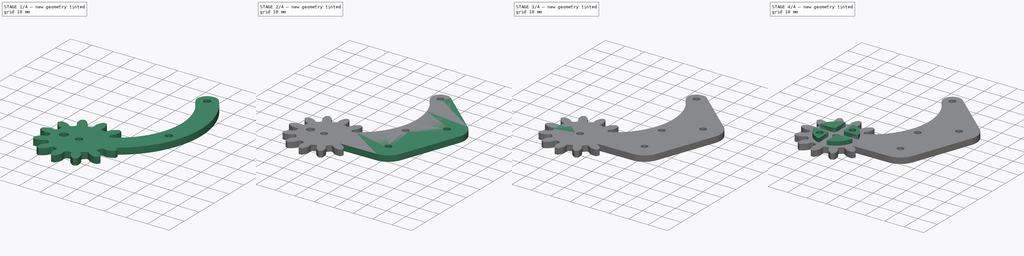
[diagram: build sequence overview — one tinted view per stage of 4, left to right]
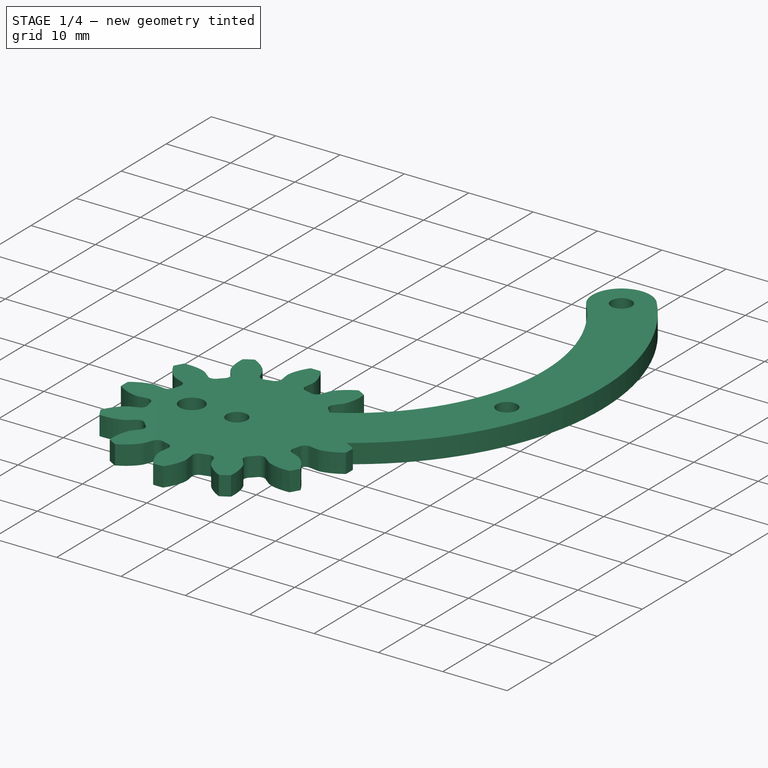
[diagram: stage 1 of 4 — iso view after this stage's code; geometry added in this stage tinted green]
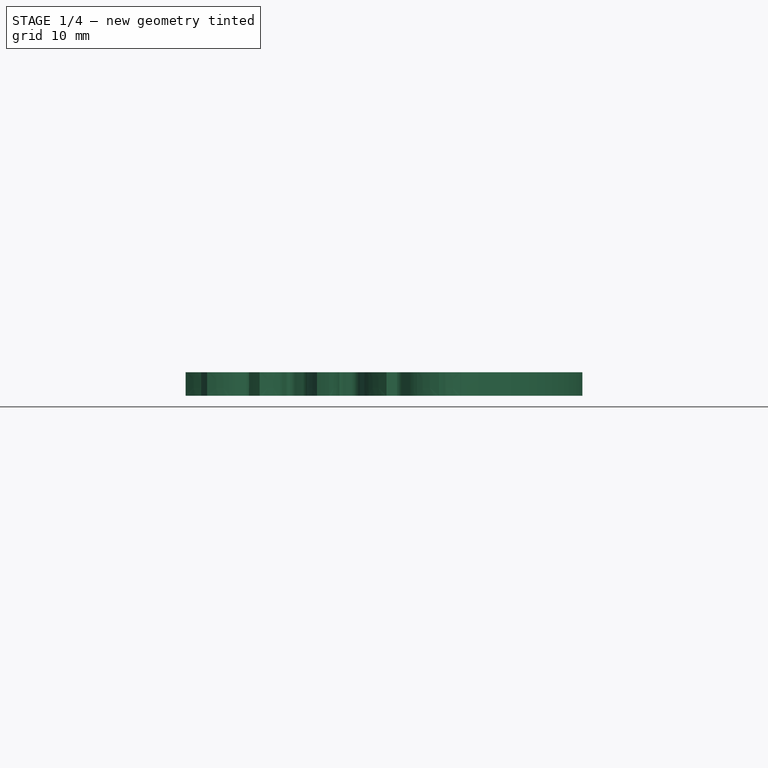
[diagram: stage 1 of 4 — front view after this stage's code; geometry added in this stage tinted green]
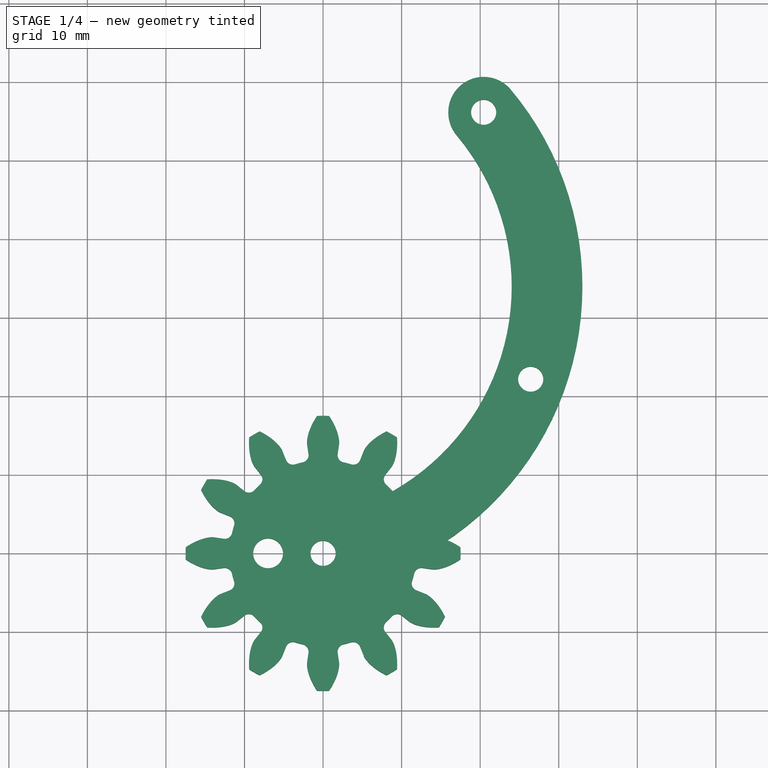
[diagram: stage 1 of 4 — top view after this stage's code; geometry added in this stage tinted green]
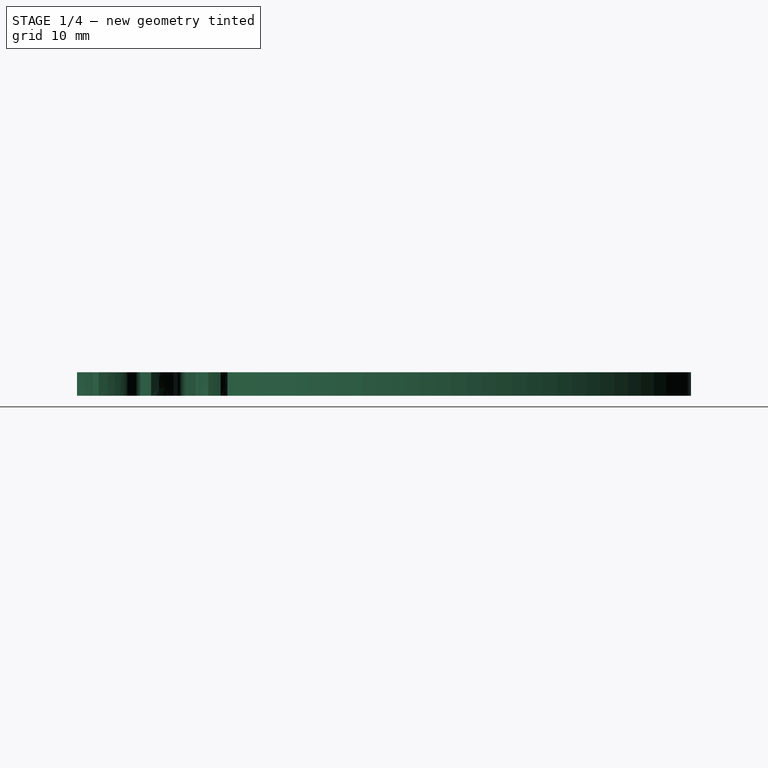
[diagram: stage 1 of 4 — right view after this stage's code; geometry added in this stage tinted green]
FCSTD DOCUMENT  (FreeCAD 0.18.1R)
Label: arm
License: All rights reserved
LicenseURL: http://en.wikipedia.org/wiki/All_rights_reserved
objects: Sketcher::SketchObject×9, PartDesign::Body×6, PartDesign::Pocket×6, PartDesign::Pad×5, TechDraw::DrawViewPart×5, PartDesign::FeatureBase×3, Part::Part2DObjectPython×2, TechDraw::DrawSVGTemplate×1, TechDraw::DrawPage×1
note: 42 computed .brp shape members not serialized (recipe doc carries the construction recipe); baked Part::Feature solids carry a one-line shape summary decoded from their .brp

FEATURE [Sketcher::SketchObject] Sketch
  MapMode = 5
  Support = -> [XY_Plane]
  sketch-geometry (11):
    g0: ArcOfCircle CenterX=-5.99086 CenterY=33.9759 CenterZ=0 NormalX=0 NormalY=0 NormalZ=1 AngleXU=0 Radius=30 StartAngle=4.88692 EndAngle=6.98132
    g1: ArcOfCircle CenterX=-5.99086 CenterY=33.9759 CenterZ=0 NormalX=0 NormalY=0 NormalZ=1 AngleXU=0 Radius=39 StartAngle=4.88692 EndAngle=6.98132
    g2: LineSegment [constr] StartX=-5.99086 StartY=33.9759 StartZ=0 EndX=23.8849 EndY=59.0446 EndZ=0
    g3: LineSegment [constr] StartX=0.781417 StartY=-4.43163 StartZ=0 EndX=-5.99086 EndY=33.9759 EndZ=0
    g4: ArcOfCircle CenterX=20.4377 CenterY=56.152 CenterZ=0 NormalX=0 NormalY=0 NormalZ=1 AngleXU=0 Radius=4.5 StartAngle=0.698132 EndAngle=3.83972
    g5: ArcOfCircle CenterX=0 CenterY=0 CenterZ=0 NormalX=0 NormalY=0 NormalZ=1 AngleXU=0 Radius=4.5 StartAngle=1.74533 EndAngle=4.88692
    g6: Circle CenterX=0 CenterY=0 CenterZ=0 NormalX=0 NormalY=0 NormalZ=1 AngleXU=0 Radius=1.6
    g7: Circle CenterX=26.4285 CenterY=22.1762 CenterZ=0 NormalX=0 NormalY=0 NormalZ=1 AngleXU=0 Radius=1.6
    g8: Circle CenterX=20.4377 CenterY=56.152 CenterZ=0 NormalX=0 NormalY=0 NormalZ=1 AngleXU=0 Radius=1.6
    g9: LineSegment [constr] StartX=-5.99086 StartY=33.9759 StartZ=0 EndX=30.6572 EndY=20.6371 EndZ=0
    g10: GeomPoint X=22.1999 Y=23.7153 Z=0
  constraints (29):
    c: Radius(g0) = 30
    c: Coincident(g1,g0)
    c: Coincident(g2,g0)
    c: Coincident(g2,g1)
    c: Coincident(g3,g1)
    c: Coincident(g3,g0)
    c: Angle(g3,g2) = 2.0944
    c: PointOnObject(g0,g3)
    c: Radius(g1) = 39
    c: Symmetric(g1,g0,g-1)
    c: Angle(g-2,g3) = 0.174533
    c: PointOnObject(g4,g2)
    c: Coincident(g4,g0)
    c: Coincident(g4,g1)
    c: Coincident(g5,g-1)
    c: Coincident(g5,g1)
    c: Coincident(g5,g0)
    c: PointOnObject(g0,g2)
    c: Coincident(g8,g4)
    c: Equal(g8,g7)
    c: Equal(g7,g6)
    c: Coincident(g9,g0)
    c: PointOnObject(g9,g1)
    c: PointOnObject(g7,g9)
    c: PointOnObject(g10,g0)
    c: Symmetric(g10,g9,g7)
    c: Angle(g3,g9) = 1.0472
    c: Diameter(g8) = 3.2
    c: Coincident(g6,g5)
FEATURE [PartDesign::Pad] Pad
  Length = 3
  Length2 = 100
  Profile = -> Sketch
  Refine = true
  Type = 0
FEATURE [PartDesign::Body] Body  label="Arm"
  Group = -> [Sketch,Pad]
  Origin = -> Origin
  Tip = -> Pad
FEATURE [Part::Part2DObjectPython] InvoluteGear  # Draft 2D object (typed FeaturePython)
  ExternalGear = true
  HighPrecision = true
  Modules = 2.5
  NumberOfTeeth = 12
  PressureAngle = 20
FEATURE [PartDesign::Pad] Pad001
  Length = 3
  Length2 = 100
  Profile = -> InvoluteGear
  Refine = true
  Type = 0
FEATURE [PartDesign::Body] Body003  label="Mount"
  BaseFeature = -> Pad
  Group = -> [Clone001,Sketch003,Pad003]
  Origin = -> Origin003
  Placement = pos=(41,0,0) rot=(0,0,1;0rad)
  Tip = -> Pad003
FEATURE [PartDesign::FeatureBase] Clone002
  BaseFeature = -> Pad001
FEATURE [PartDesign::Body] Body008  label="servo adapter"
  Group = -> [Sketch042,Pad013,Sketch043,Pocket026,Sketch044,Pocket027,Sketch045,Pocket028]
  Origin = -> Origin008
  Placement = pos=(-93,40,8) rot=(0,0,1;2.35619rad)
  Tip = -> Pocket028
FEATURE [PartDesign::Pocket] Pocket029
  BaseFeature = -> Clone002
  Length = 5
  Length2 = 100
  Profile = -> Sketch004
  Refine = true
  Type = 1
FEATURE [PartDesign::Body] Body004  label="Servo Gear"
  BaseFeature = -> Pad001
  Group = -> [Clone002,Sketch004,Pocket029]
  Origin = -> Origin004
  Placement = pos=(-93,40,0) rot=(0,0,1;0rad)
  Tip = -> Pocket029
FEATURE [TechDraw::DrawSVGTemplate] Template
  Height = 210
  Orientation = 1
  Width = 297
FEATURE [TechDraw::DrawViewPart] View
  CoarseView = false
  Direction = (0,0,1)
  Focus = 100
  HardHidden = false
  IsoCount = 0
  IsoHidden = false
  IsoVisible = false
  LockPosition = false
  Perspective = false
  Rotation = 0
  ScaleType = 0
  SeamHidden = false
  SeamVisible = false
  SmoothHidden = false
  SmoothVisible = false
  Source = -> [Body]
  X = 52.0366
  Y = 151.098
FEATURE [TechDraw::DrawViewPart] View001
  CoarseView = false
  Direction = (0,0,1)
  Focus = 100
  HardHidden = false
  IsoCount = 0
  IsoHidden = false
  IsoVisible = false
  LockPosition = false
  Perspective = false
  Rotation = 0
  ScaleType = 0
  SeamHidden = false
  SeamVisible = false
  SmoothHidden = false
  SmoothVisible = false
  Source = -> [Body001]
  X = 100.268
  Y = 167.744
FEATURE [TechDraw::DrawViewPart] View002
  CoarseView = false
  Direction = (0,0,1)
  Focus = 100
  HardHidden = false
  IsoCount = 0
  IsoHidden = false
  IsoVisible = false
  LockPosition = false
  Perspective = false
  Rotation = 0
  ScaleType = 0
  SeamHidden = false
  SeamVisible = false
  SmoothHidden = false
  SmoothVisible = false
  Source = -> [Body002]
  X = 154.902
  Y = 145.122
FEATURE [TechDraw::DrawViewPart] View003
  CoarseView = false
  Direction = (0,0,1)
  Focus = 100
  HardHidden = false
  IsoCount = 0
  IsoHidden = false
  IsoVisible = false
  LockPosition = false
  Perspective = false
  Rotation = 0
  ScaleType = 0
  SeamHidden = false
  SeamVisible = false
  SmoothHidden = false
  SmoothVisible = false
  Source = -> [Body003]
  X = 232.585
  Y = 155.366
FEATURE [TechDraw::DrawViewPart] View004
  CoarseView = false
  Direction = (0,0,1)
  Focus = 100
  HardHidden = false
  IsoCount = 0
  IsoHidden = false
  IsoVisible = false
  LockPosition = false
  Perspective = false
  Rotation = 0
  ScaleType = 0
  SeamHidden = false
  SeamVisible = false
  SmoothHidden = false
  SmoothVisible = false
  Source = -> [Body004]
  X = 47.7683
  Y = 84.939
FEATURE [TechDraw::DrawPage] Page
  KeepUpdated = true
  ProjectionType = 0
  Template = -> Template
  Views = -> [View,View001,View002,View003,View004]
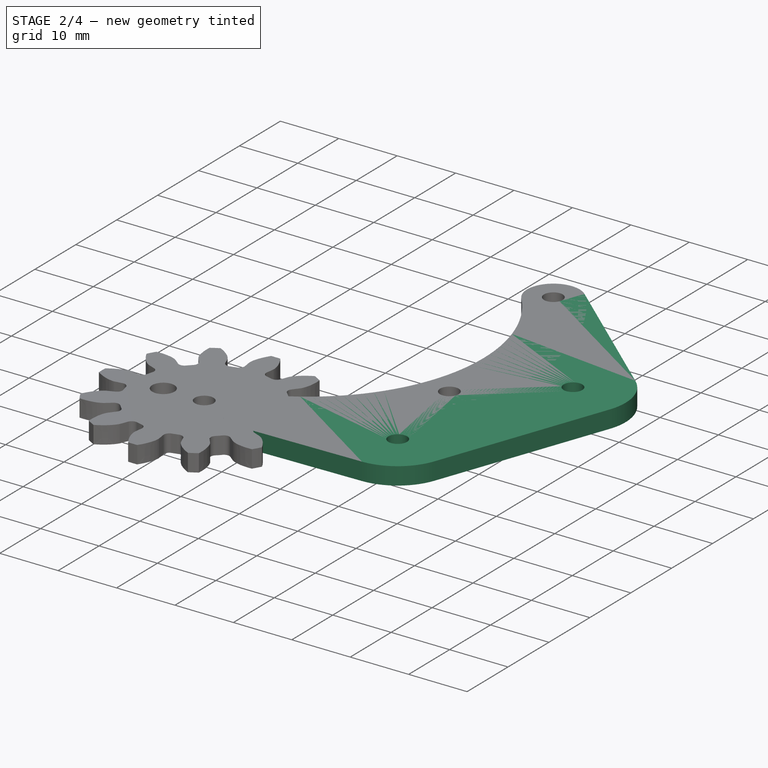
[diagram: stage 2 of 4 — iso view after this stage's code; geometry added in this stage tinted green]
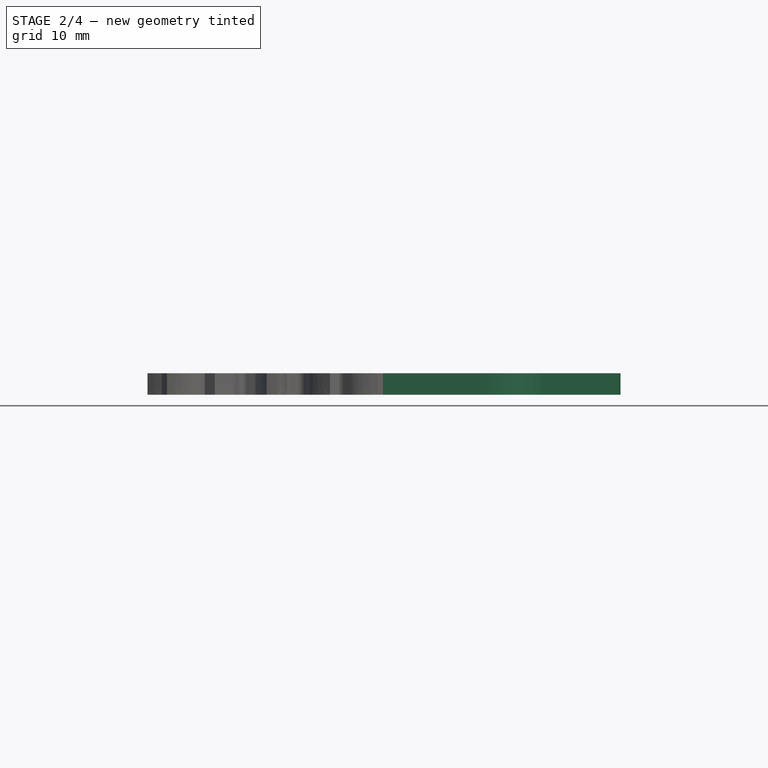
[diagram: stage 2 of 4 — front view after this stage's code; geometry added in this stage tinted green]
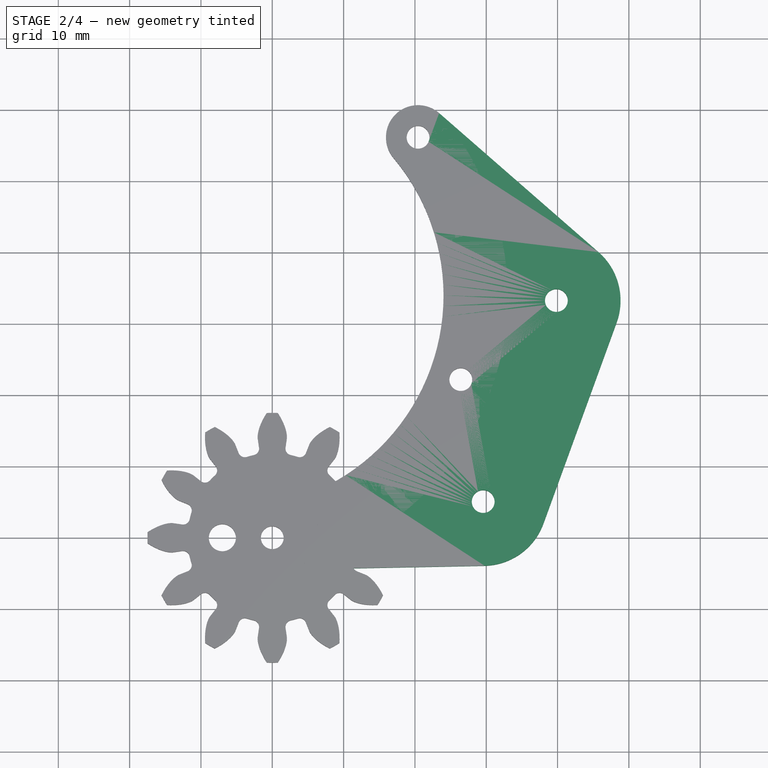
[diagram: stage 2 of 4 — top view after this stage's code; geometry added in this stage tinted green]
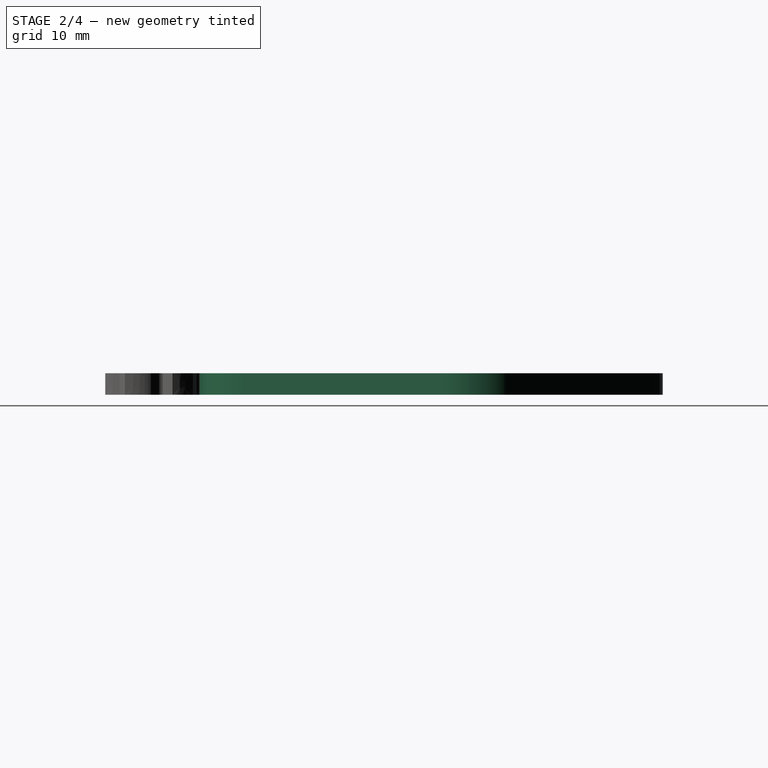
[diagram: stage 2 of 4 — right view after this stage's code; geometry added in this stage tinted green]
FEATURE [PartDesign::FeatureBase] Clone
  BaseFeature = -> Pad
FEATURE [PartDesign::Body] Body001  label="Gear"
  Group = -> [InvoluteGear,Pad001,Sketch002,Pocket001]
  Origin = -> Origin001
  Placement = pos=(-93,0,0) rot=(0,0,1;0rad)
  Tip = -> Pocket001
FEATURE [PartDesign::FeatureBase] Clone001
  BaseFeature = -> Pad
FEATURE [Sketcher::SketchObject] Sketch003
  ExternalGeometry = -> [Clone001]
  MapMode = 5
  Support = -> [XY_Plane003]
  sketch-geometry (10):
    g0: Circle CenterX=39.829 CenterY=33.2615 CenterZ=0 NormalX=0 NormalY=0 NormalZ=1 AngleXU=0 Radius=1.6
    g1: Circle CenterX=29.5684 CenterY=5.0707 CenterZ=0 NormalX=0 NormalY=0 NormalZ=1 AngleXU=0 Radius=1.6
    g2: LineSegment [constr] StartX=0 StartY=0 StartZ=0 EndX=39.829 EndY=33.2615 EndZ=0
    g3: LineSegment [constr] StartX=20.4377 StartY=56.152 StartZ=0 EndX=29.5684 EndY=5.0707 EndZ=0
    g4: ArcOfCircle CenterX=29.5684 CenterY=5.0707 CenterZ=0 NormalX=0 NormalY=0 NormalZ=1 AngleXU=0 Radius=9 StartAngle=4.73166 EndAngle=5.93412
    g5: ArcOfCircle CenterX=39.829 CenterY=33.2615 CenterZ=0 NormalX=0 NormalY=0 NormalZ=1 AngleXU=0 Radius=9 StartAngle=5.93412 EndAngle=7.13658
    g6: LineSegment StartX=45.7458 StartY=40.0431 StartZ=0 EndX=23.3961 EndY=59.5429 EndZ=0
    g7: LineSegment StartX=48.2862 StartY=30.1833 StartZ=0 EndX=38.0256 EndY=1.99252 EndZ=0
    g8: LineSegment StartX=29.7418 StartY=-3.92763 StartZ=0 EndX=0.0867118 EndY=-4.49916 EndZ=0
    g9: ArcOfCircle CenterX=-10.9749 CenterY=35.7899 CenterZ=0 NormalX=0 NormalY=0 NormalZ=1 AngleXU=0 Radius=41.78 StartAngle=4.98034 EndAngle=6.8879
  constraints (25):
    c: Distance(g-6,g0) = 30
    c: Distance(g0,g1) = 30
    c: Distance(g1,g-1) = 30
    c: Coincident(g2,g-1)
    c: Coincident(g2,g0)
    c: Coincident(g3,g-6)
    c: Coincident(g3,g1)
    c: Equal(g2,g3)
    c: Equal(g1,g0)
    c: Coincident(g4,g1)
    c: Coincident(g5,g0)
    c: PointOnObject(g6,g-6)
    c: Tangent(g7,g5) = 1.5708
    c: Tangent(g7,g4) = 1.5708
    c: PointOnObject(g8,g-7)
    c: Equal(g5,g4)
    c: Radius(g5) = 9
    c: Diameter(g0) = 3.2
    c: Tangent(g8,g4) = 1.5708
    c: Tangent(g6,g5) = -1.5708
    c: Tangent(g6,g-6)
    c: Tangent(g8,g-7)
    c: Coincident(g9,g6)
    c: Coincident(g9,g8)
    c: Radius(g9) = 41.78
FEATURE [PartDesign::Pad] Pad003
  BaseFeature = -> Clone001
  Length = 3
  Length2 = 100
  Profile = -> Sketch003
  Refine = true
  Type = 0
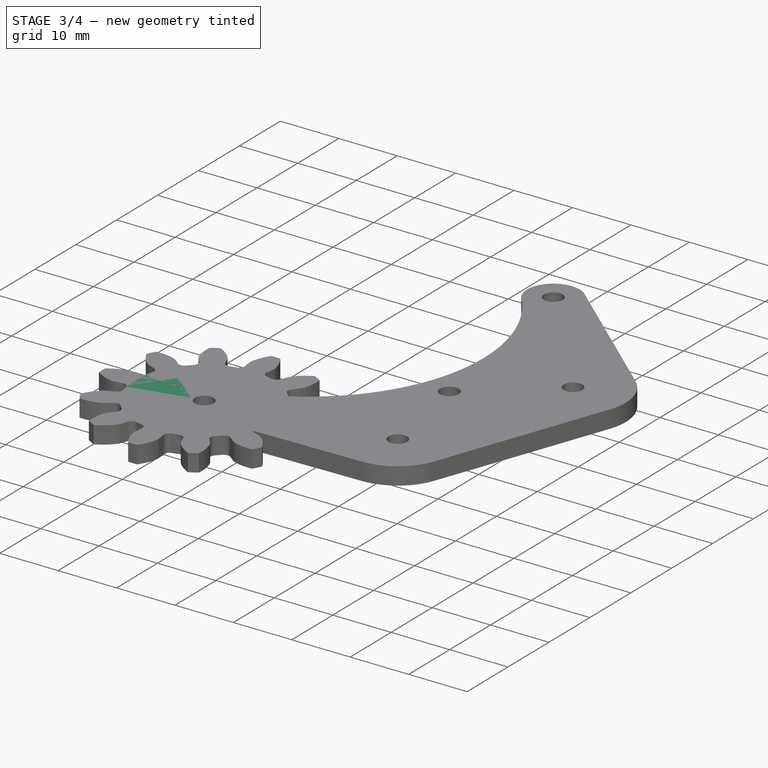
[diagram: stage 3 of 4 — iso view after this stage's code; geometry added in this stage tinted green]
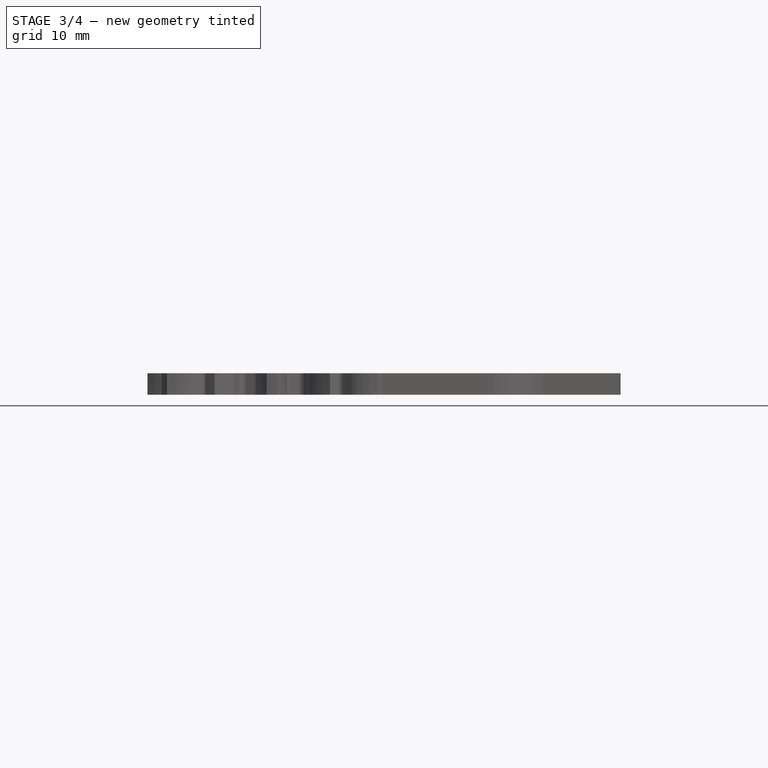
[diagram: stage 3 of 4 — front view after this stage's code; geometry added in this stage tinted green]
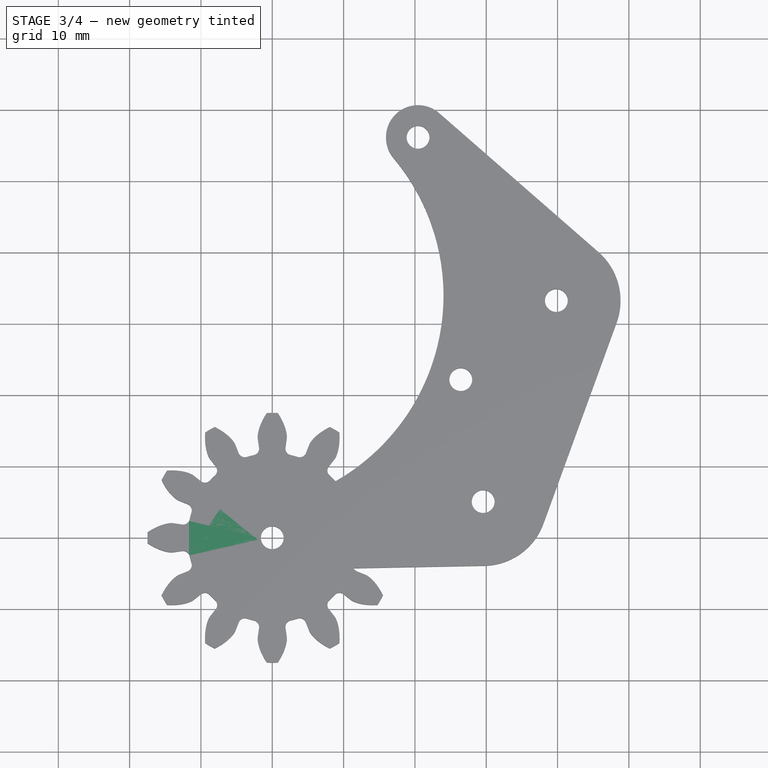
[diagram: stage 3 of 4 — top view after this stage's code; geometry added in this stage tinted green]
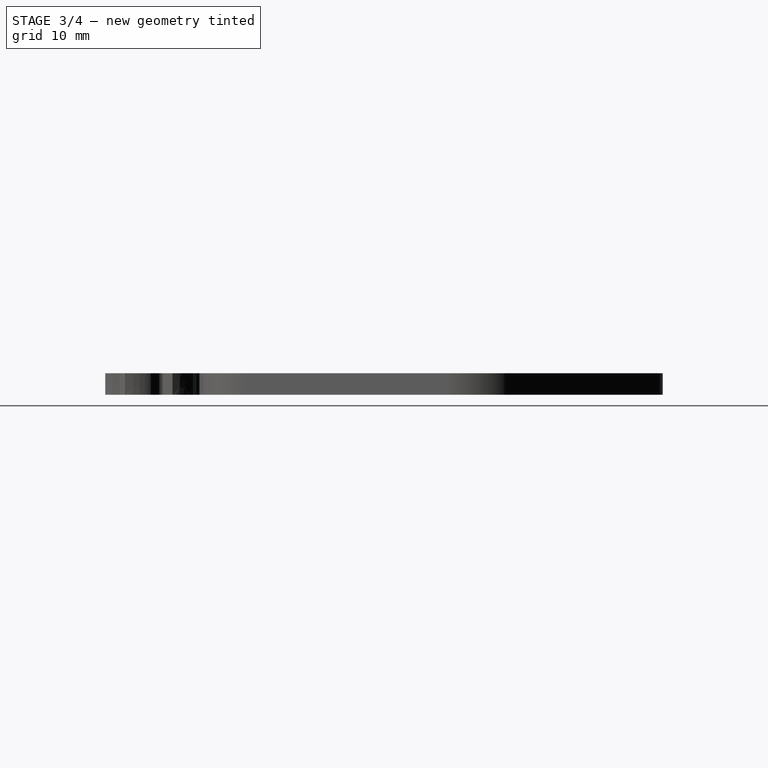
[diagram: stage 3 of 4 — right view after this stage's code; geometry added in this stage tinted green]
FEATURE [Part::Part2DObjectPython] InvoluteGear001  # Draft 2D object (typed FeaturePython)
  ExternalGear = true
  HighPrecision = true
  Modules = 2.5
  NumberOfTeeth = 12
  PressureAngle = 20
FEATURE [PartDesign::Pad] Pad002
  BaseFeature = -> Clone
  Length = 3
  Length2 = 100
  Profile = -> InvoluteGear001
  Refine = true
  Type = 0
FEATURE [Sketcher::SketchObject] Sketch001
  ExternalGeometry = -> [Pad002]
  MapMode = 5
  Support = -> [XY_Plane002]
  sketch-geometry (2):
    g0: Circle CenterX=-5.99086 CenterY=33.9759 CenterZ=0 NormalX=0 NormalY=0 NormalZ=1 AngleXU=0 Radius=30
    g1: Circle CenterX=0 CenterY=0 CenterZ=0 NormalX=0 NormalY=0 NormalZ=1 AngleXU=0 Radius=2.05
  constraints (4):
    c: Coincident(g0,g-3)
    c: PointOnObject(g-3,g0)
    c: Coincident(g1,g-1)
    c: Diameter(g1) = 4.1
FEATURE [PartDesign::Pocket] Pocket
  BaseFeature = -> Pad002
  Length = 5
  Length2 = 100
  Profile = -> Sketch001
  Refine = true
  Reversed = true
  Type = 0
FEATURE [PartDesign::Body] Body002  label="Arm Lever"
  BaseFeature = -> Pad
  Group = -> [Clone,InvoluteGear001,Pad002,Sketch001,Pocket]
  Origin = -> Origin002
  Placement = pos=(-37,0,0) rot=(0,0,1;0rad)
  Tip = -> Pocket
FEATURE [Sketcher::SketchObject] Sketch002
  MapMode = 5
  Support = -> [XY_Plane001]
  sketch-geometry (1):
    g0: Circle CenterX=0 CenterY=0 CenterZ=0 NormalX=0 NormalY=0 NormalZ=1 AngleXU=0 Radius=2.05
  constraints (2):
    c: Coincident(g0,g-1)
    c: Diameter(g0) = 4.1
FEATURE [PartDesign::Pocket] Pocket001
  BaseFeature = -> Pad001
  Length = 5
  Length2 = 100
  Profile = -> Sketch002
  Refine = true
  Reversed = true
  Type = 1
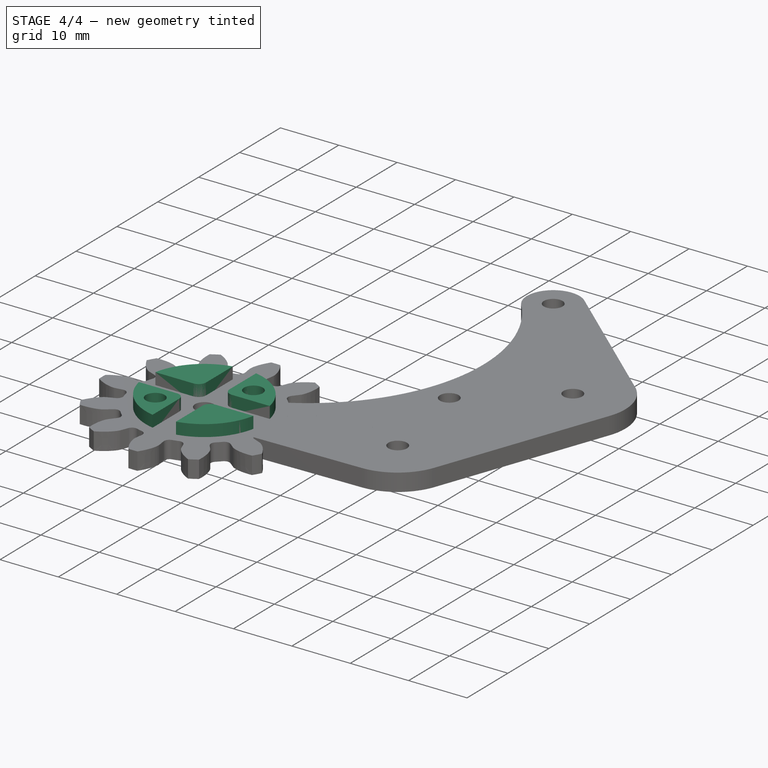
[diagram: stage 4 of 4 — iso view after this stage's code; geometry added in this stage tinted green]
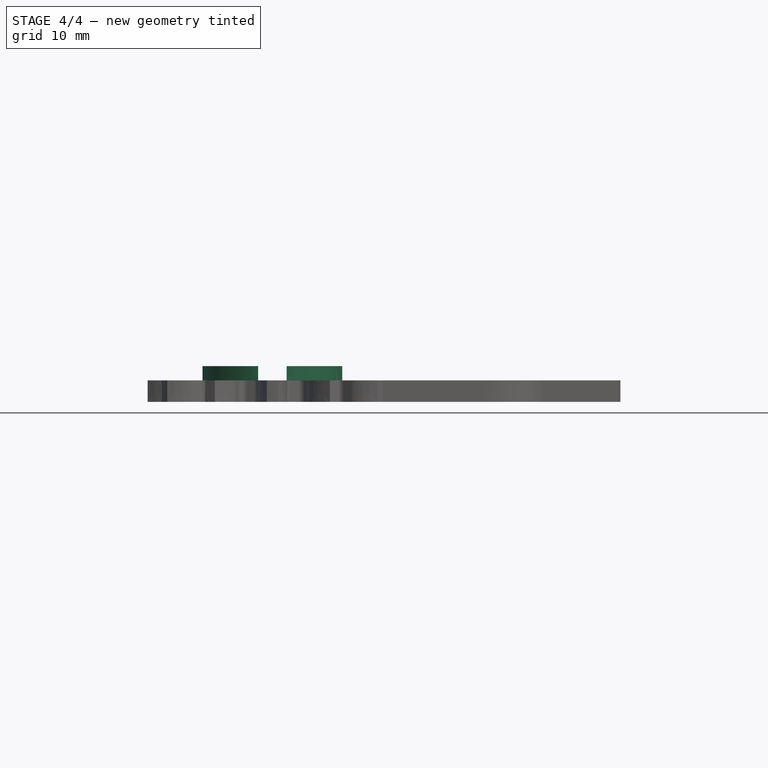
[diagram: stage 4 of 4 — front view after this stage's code; geometry added in this stage tinted green]
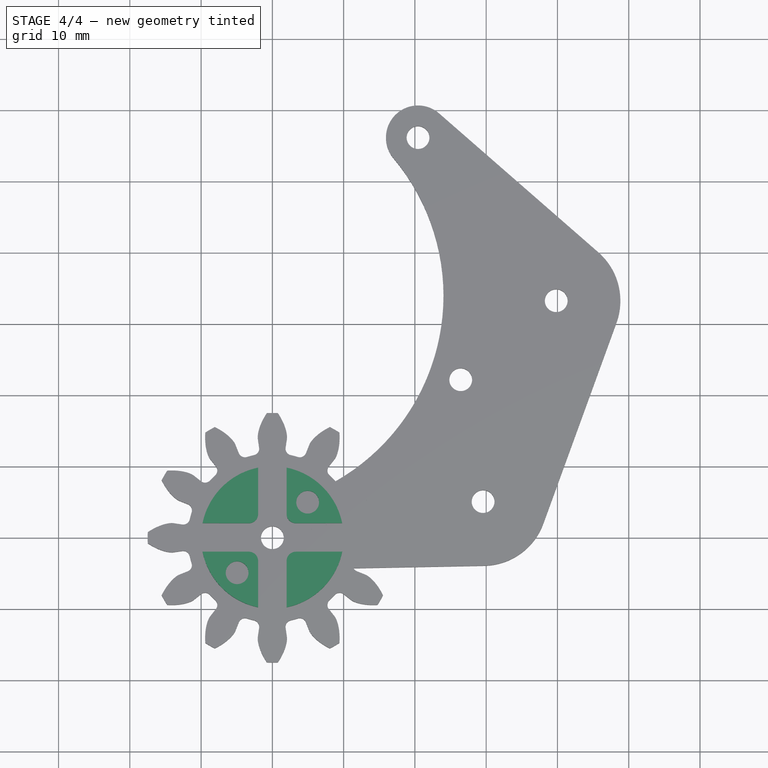
[diagram: stage 4 of 4 — top view after this stage's code; geometry added in this stage tinted green]
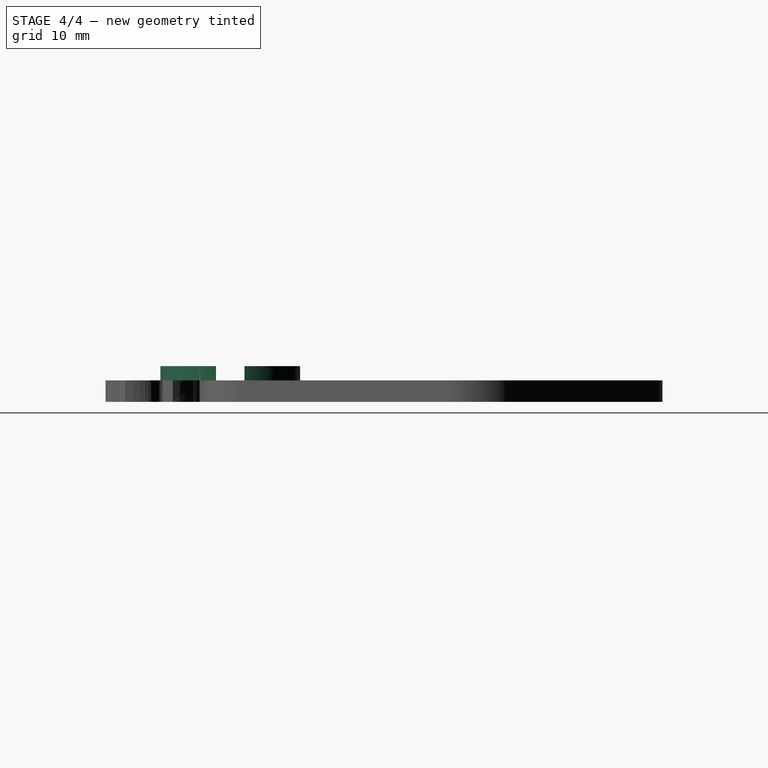
[diagram: stage 4 of 4 — right view after this stage's code; geometry added in this stage tinted green]
FEATURE [Sketcher::SketchObject] Sketch004
  MapMode = 5
  Placement = pos=(0,0,3) rot=(0,0,1;0rad)
  Support = -> [Clone002]
  sketch-geometry (3):
    g0: Circle CenterX=0 CenterY=0 CenterZ=0 NormalX=0 NormalY=0 NormalZ=1 AngleXU=0 Radius=1.9
    g1: Circle CenterX=-7 CenterY=0 CenterZ=0 NormalX=0 NormalY=0 NormalZ=1 AngleXU=0 Radius=1.9
    g2: Circle CenterX=7 CenterY=0 CenterZ=0 NormalX=0 NormalY=0 NormalZ=1 AngleXU=0 Radius=1.9
  constraints (7):
    c: PointOnObject(g1,g-1)
    c: Equal(g2,g0)
    c: Equal(g0,g1)
    c: Symmetric(g1,g2,g0)
    c: Coincident(g0,g-1)
    c: Diameter(g1) = 3.8
    c: DistanceX(g1,g2) = 14
FEATURE [Sketcher::SketchObject] Sketch042
  MapMode = 5
  Support = -> [XY_Plane008]
  sketch-geometry (1):
    g0: Circle CenterX=0 CenterY=0 CenterZ=0 NormalX=0 NormalY=0 NormalZ=1 AngleXU=0 Radius=10
  constraints (2):
    c: Coincident(g0,g-1)
    c: Diameter(g0) = 20
FEATURE [PartDesign::Pad] Pad013
  Length = 5
  Length2 = 100
  Profile = -> Sketch042
  Refine = true
  Type = 0
FEATURE [Sketcher::SketchObject] Sketch043
  ExternalGeometry = -> [Pad013]
  MapMode = 5
  Placement = pos=(0,0,5) rot=(0,0,1;0rad)
  Support = -> [Pad013]
  sketch-geometry (16):
    g0: LineSegment StartX=-2 StartY=10 StartZ=0 EndX=2 EndY=10 EndZ=0
    g1: LineSegment StartX=2 StartY=10 StartZ=0 EndX=2 EndY=3.3 EndZ=0
    g2: LineSegment StartX=2 StartY=-10 StartZ=0 EndX=-2 EndY=-10 EndZ=0
    g3: LineSegment StartX=-2 StartY=-10 StartZ=0 EndX=-2 EndY=-3.3 EndZ=0
    g4: LineSegment StartX=-10 StartY=2 StartZ=0 EndX=-3.3 EndY=2 EndZ=0
    g5: LineSegment StartX=10 StartY=2 StartZ=0 EndX=10 EndY=-2 EndZ=0
    g6: LineSegment StartX=10 StartY=-2 StartZ=0 EndX=3.3 EndY=-2 EndZ=0
    g7: LineSegment StartX=-10 StartY=-2 StartZ=0 EndX=-10 EndY=2 EndZ=0
    g8: LineSegment StartX=3.3 StartY=2 StartZ=0 EndX=10 EndY=2 EndZ=0
    g9: LineSegment StartX=-2 StartY=3.3 StartZ=0 EndX=-2 EndY=10 EndZ=0
    g10: LineSegment StartX=2 StartY=-3.3 StartZ=0 EndX=2 EndY=-10 EndZ=0
    g11: LineSegment StartX=-3.3 StartY=-2 StartZ=0 EndX=-10 EndY=-2 EndZ=0
    g12: ArcOfCircle CenterX=-3.3 CenterY=3.3 CenterZ=0 NormalX=0 NormalY=0 NormalZ=1 AngleXU=0 Radius=1.3 StartAngle=4.71239 EndAngle=6.28319
    g13: ArcOfCircle CenterX=3.3 CenterY=3.3 CenterZ=0 NormalX=0 NormalY=0 NormalZ=1 AngleXU=0 Radius=1.3 StartAngle=3.14159 EndAngle=4.71239
    g14: ArcOfCircle CenterX=3.3 CenterY=-3.3 CenterZ=0 NormalX=0 NormalY=0 NormalZ=1 AngleXU=0 Radius=1.3 StartAngle=1.5708 EndAngle=3.14159
    g15: ArcOfCircle CenterX=-3.3 CenterY=-3.3 CenterZ=0 NormalX=0 NormalY=0 NormalZ=1 AngleXU=0 Radius=1.3 StartAngle=1e-16 EndAngle=1.5708
  constraints (38):
    c: Coincident(g0,g1)
    c: Coincident(g10,g2)
    c: Coincident(g2,g3)
    c: Coincident(g9,g0)
    c: Horizontal(g0)
    c: Horizontal(g2)
    c: Vertical(g1)
    c: Vertical(g3)
    c: Coincident(g8,g5)
    c: Coincident(g5,g6)
    c: Coincident(g11,g7)
    c: Coincident(g7,g4)
    c: Horizontal(g4)
    c: Horizontal(g6)
    c: Vertical(g5)
    c: Vertical(g7)
    c: Symmetric(g4,g5,g-1)
    c: Symmetric(g0,g2,g-1)
    c: Tangent(g0,g-3)
    c: Tangent(g7,g-3)
    c: DistanceX(g0,g0) = 4
    c: DistanceY(g7,g7) = 4
    c: Tangent(g4,g8)
    c: Tangent(g3,g9)
    c: Tangent(g1,g10)
    c: Tangent(g6,g11)
    c: Tangent(g4,g12) = -1.5708
    c: Tangent(g9,g12) = -1.5708
    c: Tangent(g1,g13) = -1.5708
    c: Tangent(g8,g13) = -1.5708
    c: Tangent(g6,g14) = -1.5708
    c: Tangent(g10,g14) = -1.5708
    c: Tangent(g3,g15) = -1.5708
    c: Tangent(g11,g15) = -1.5708
    c: Equal(g12,g13)
    c: Equal(g13,g14)
    c: Equal(g14,g15)
    c: Radius(g12) = 1.3
FEATURE [PartDesign::Pocket] Pocket026
  BaseFeature = -> Pad013
  Length = 3
  Length2 = 100
  Profile = -> Sketch043
  Refine = true
  Type = 0
FEATURE [Sketcher::SketchObject] Sketch044
  MapMode = 5
  Placement = pos=(0,0,0) rot=(1,0,0;3.14159rad)
  Support = -> [Pocket026]
  sketch-geometry (1):
    g0: Circle CenterX=0 CenterY=0 CenterZ=0 NormalX=0 NormalY=0 NormalZ=1 AngleXU=0 Radius=2.75
  constraints (2):
    c: Diameter(g0) = 5.5
    c: Coincident(g0,g-1)
FEATURE [PartDesign::Pocket] Pocket027
  BaseFeature = -> Pocket026
  Length = 5
  Length2 = 100
  Profile = -> Sketch044
  Refine = true
  Type = 1
FEATURE [Sketcher::SketchObject] Sketch045
  ExternalGeometry = -> [Pocket027]
  MapMode = 5
  Placement = pos=(0,0,5) rot=(0,0,1;0rad)
  Support = -> [Pocket027]
  sketch-geometry (3):
    g0: Circle CenterX=4.94975 CenterY=4.94975 CenterZ=0 NormalX=0 NormalY=0 NormalZ=1 AngleXU=0 Radius=1.6
    g1: Circle CenterX=-4.94975 CenterY=-4.94975 CenterZ=0 NormalX=0 NormalY=0 NormalZ=1 AngleXU=0 Radius=1.6
    g2: LineSegment [constr] StartX=-4.94975 StartY=-4.94975 StartZ=0 EndX=4.94975 EndY=4.94975 EndZ=0
  constraints (7):
    c: Equal(g0,g1)
    c: Coincident(g2,g1)
    c: Coincident(g2,g0)
    c: Symmetric(g1,g0,g-1)
    c: Symmetric(g-3,g-4,g2)
    c: Diameter(g0) = 3.2
    c: Distance(g1,g0) = 14
FEATURE [PartDesign::Pocket] Pocket028
  BaseFeature = -> Pocket027
  Length = 5
  Length2 = 100
  Profile = -> Sketch045
  Refine = true
  Type = 1
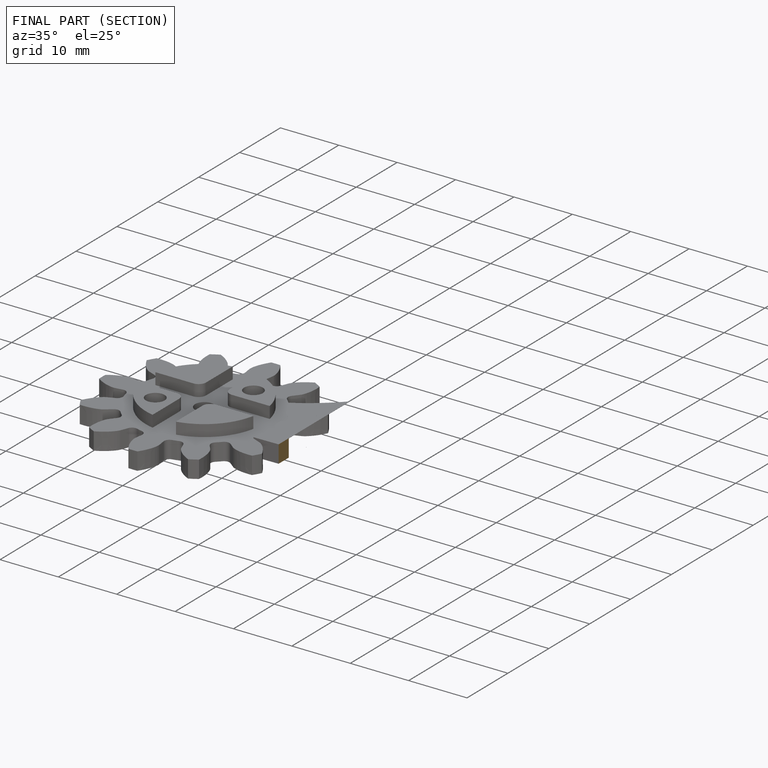
[diagram: finished part — half-section view (interior)]
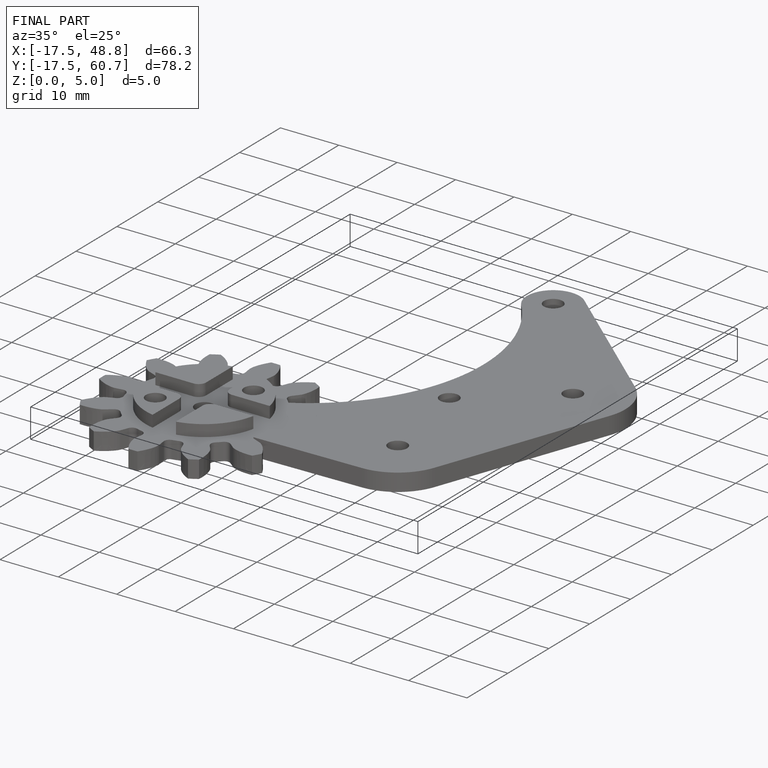
[diagram: finished part — iso view with bounding-box wireframe]
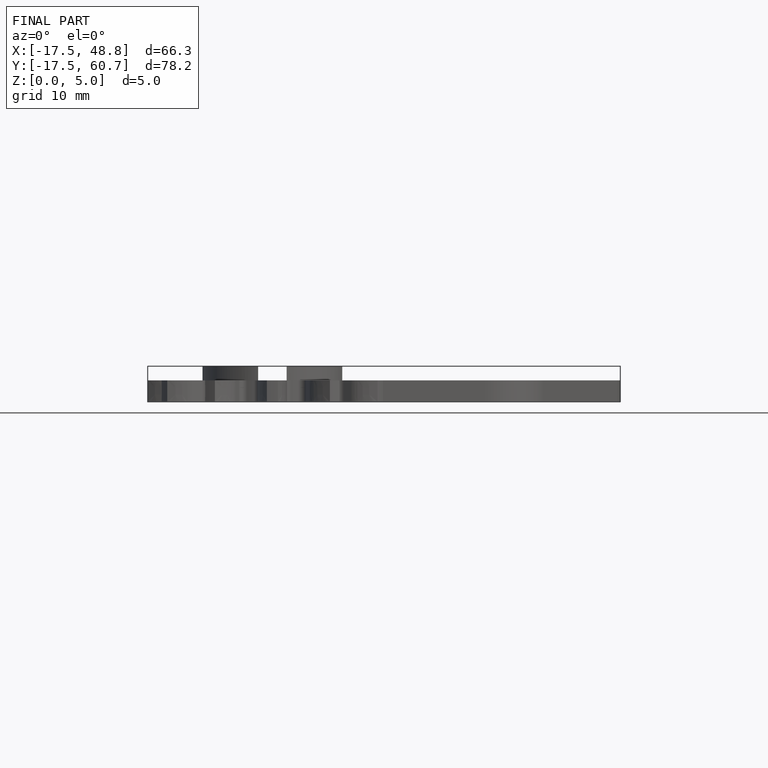
[diagram: finished part — front view with bounding-box wireframe]
